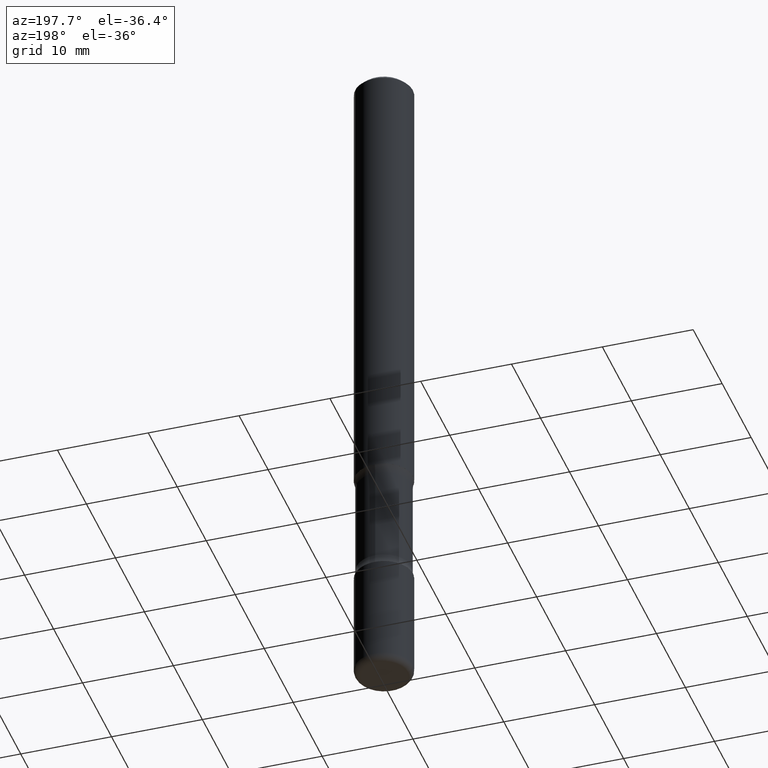
[diagram: clean part render]
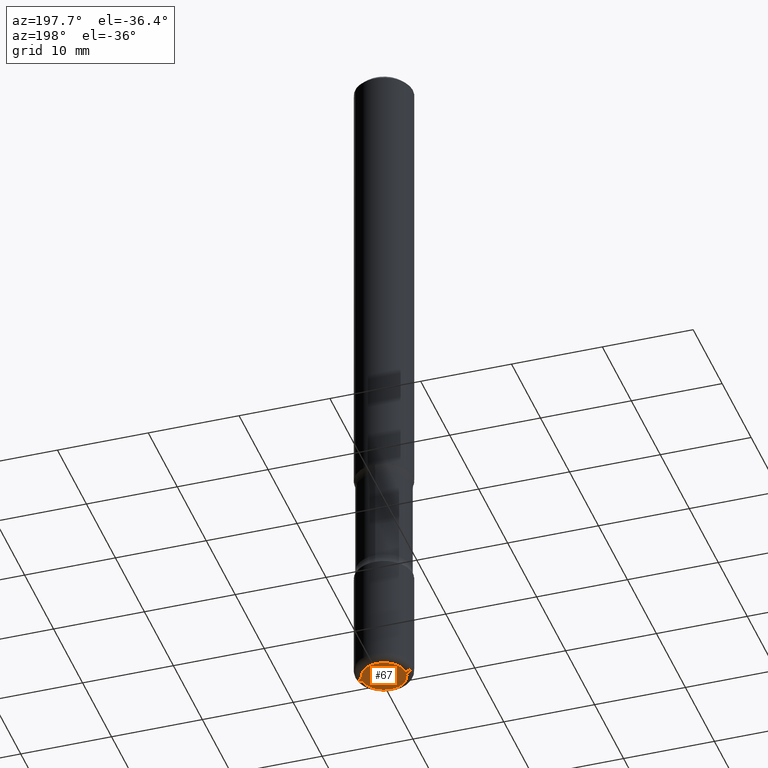
[diagram: same view with one face highlighted and labeled with its STEP entity id]
A machine part, auxiliary view. The second image highlights one B-rep face of the part: STEP entity #67.
In plain terms, the highlighted planar face has unit normal (0, -0, -1).
Its self-contained STEP definition (entity closure, byte-faithful):
#15 = FACE_OUTER_BOUND ( 'NONE', #219, .T. ) ;
#29 = DIRECTION ( 'NONE',  ( -2.445468806185136597E-29, 3.491481338843145583E-15, 1.000000000000000000 ) ) ;
#55 = CARTESIAN_POINT ( 'NONE',  ( 7.336406418555408669E-29, -1.047444401652943478E-14, -2.999999999999999556 ) ) ;
#64 = CARTESIAN_POINT ( 'NONE',  ( 7.336406418555408669E-29, -1.047444401652943478E-14, -2.999999999999999556 ) ) ;
#67 = ADVANCED_FACE ( 'NONE', ( #15 ), #392, .T. ) ;
#101 = ORIENTED_EDGE ( 'NONE', *, *, #183, .F. ) ;
#108 = DIRECTION ( 'NONE',  ( 1.000000000000000000, -6.982962677686270655E-15, 0.000000000000000000 ) ) ;
#152 = DIRECTION ( 'NONE',  ( -2.445468806185136597E-29, 3.491481338843145583E-15, 1.000000000000000000 ) ) ;
#183 = EDGE_CURVE ( 'NONE', #475, #265, #419, .T. ) ;
#219 = EDGE_LOOP ( 'NONE', ( #101, #509 ) ) ;
#253 = AXIS2_PLACEMENT_3D ( 'NONE', #64, #29, #329 ) ;
#258 = DIRECTION ( 'NONE',  ( 2.438088387897960049E-29, -3.491481338843145188E-15, -1.000000000000000000 ) ) ;
#265 = VERTEX_POINT ( 'NONE', #308 ) ;
#308 = CARTESIAN_POINT ( 'NONE',  ( -0.09500000000000015377, -9.640474787110678770E-15, -2.999999999999999556 ) ) ;
#329 = DIRECTION ( 'NONE',  ( 1.000000000000000000, -6.982962677686270655E-15, 0.000000000000000000 ) ) ;
#386 = CARTESIAN_POINT ( 'NONE',  ( 0.09500000000000015377, -1.113782547090963138E-14, -2.999999999999999556 ) ) ;
#392 = PLANE ( 'NONE',  #433 ) ;
#402 = CIRCLE ( 'NONE', #253, 0.09500000000000015377 ) ;
#419 = CIRCLE ( 'NONE', #490, 0.09500000000000015377 ) ;
#431 = DIRECTION ( 'NONE',  ( -1.000000000000000000, 6.982962677686265922E-15, -4.876176775795935793E-29 ) ) ;
#433 = AXIS2_PLACEMENT_3D ( 'NONE', #55, #258, #431 ) ;
#475 = VERTEX_POINT ( 'NONE', #386 ) ;
#490 = AXIS2_PLACEMENT_3D ( 'NONE', #500, #152, #108 ) ;
#500 = CARTESIAN_POINT ( 'NONE',  ( 7.336406418555408669E-29, -1.047444401652943478E-14, -2.999999999999999556 ) ) ;
#509 = ORIENTED_EDGE ( 'NONE', *, *, #529, .F. ) ;
#529 = EDGE_CURVE ( 'NONE', #265, #475, #402, .T. ) ;